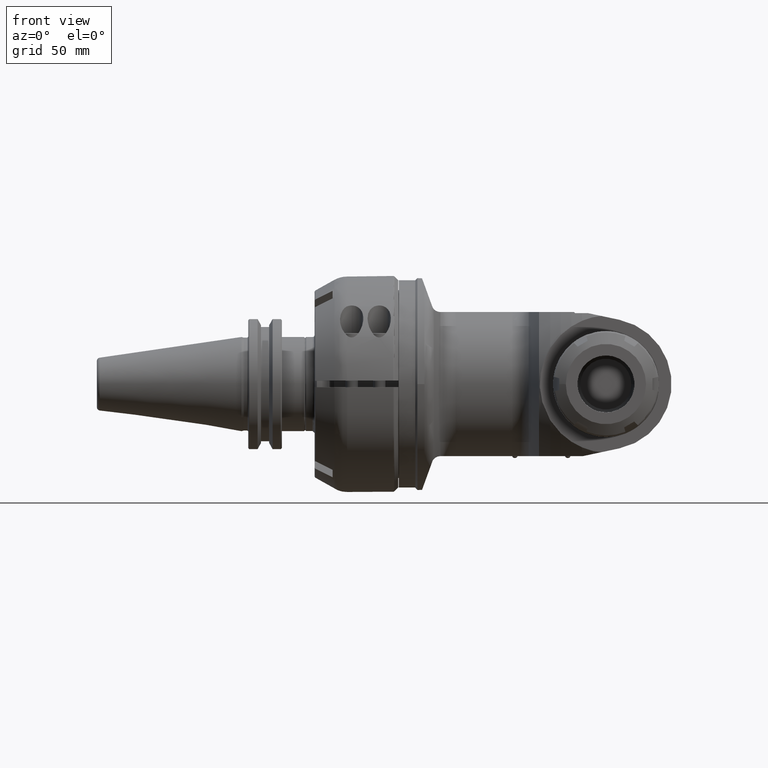
[diagram: clean part render]
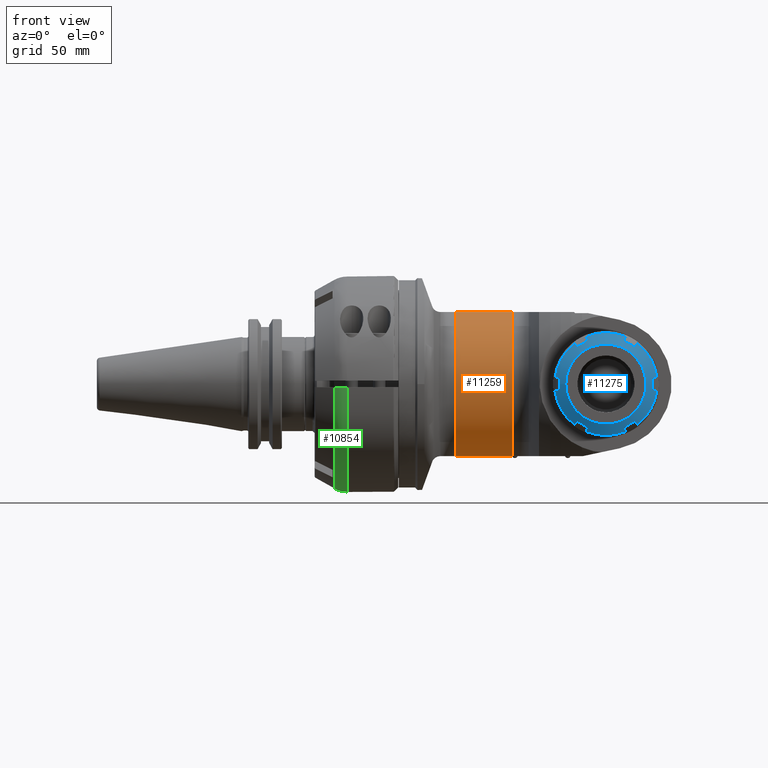
[diagram: same view with three faces highlighted in distinct colors, each labeled with its STEP entity id]
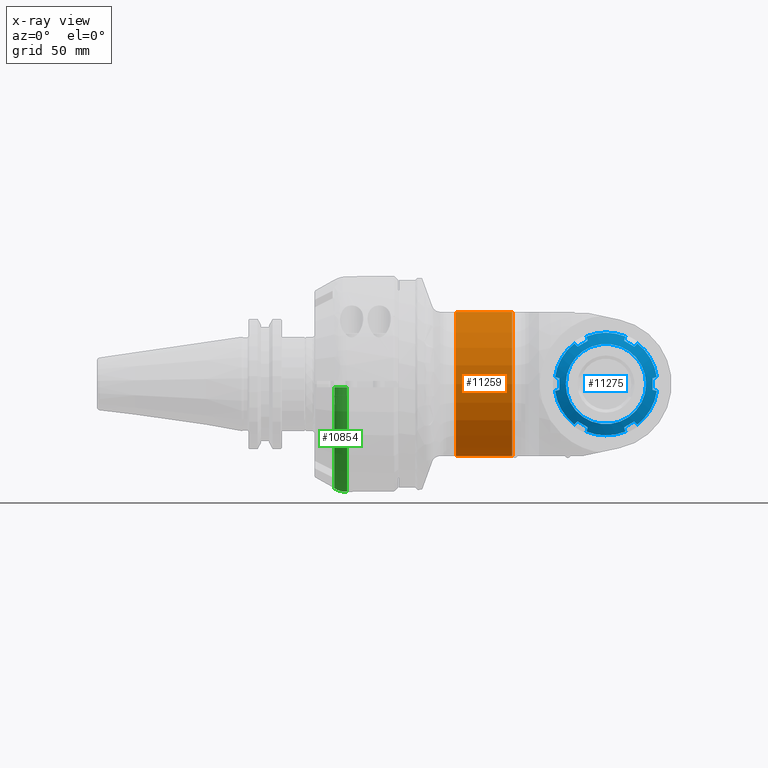
[diagram: x-ray of the same camera — body ghosted, the three highlighted faces saturated]
A machine part, front view with three faces highlighted in distinct colors.
The next image is the same camera in x-ray (body ghosted, the three faces saturated) — at least one of them is partly hidden behind the body in this view.
Their STEP definitions:

[orange] entity #11259 — the highlighted cylindrical surface (partial cylindrical patch) has radius 36 mm, axis along (-1, 0, 0).
#966=LINE('',#20756,#1640);
#974=LINE('',#20975,#1648);
#1640=VECTOR('',#14504,26.67897826015);
#1648=VECTOR('',#14532,26.67897826015);
#2056=CYLINDRICAL_SURFACE('',#12391,36.);
#2694=FACE_OUTER_BOUND('',#3419,.T.);
#3419=EDGE_LOOP('',(#9404,#9405,#9406,#9407));
#4008=CIRCLE('',#12168,36.);
#4092=CIRCLE('',#12390,36.);
#4822=VERTEX_POINT('',#20742);
#4823=VERTEX_POINT('',#20755);
#4850=VERTEX_POINT('',#20913);
#4859=VERTEX_POINT('',#20964);
#6215=EDGE_CURVE('',#4823,#4822,#966,.T.);
#6245=EDGE_CURVE('',#4850,#4822,#4008,.T.);
#6254=EDGE_CURVE('',#4850,#4859,#974,.T.);
#6572=EDGE_CURVE('',#4859,#4823,#4092,.T.);
#9404=ORIENTED_EDGE('',*,*,#6215,.T.);
#9405=ORIENTED_EDGE('',*,*,#6245,.F.);
#9406=ORIENTED_EDGE('',*,*,#6254,.T.);
#9407=ORIENTED_EDGE('',*,*,#6572,.T.);
#11259=ADVANCED_FACE('',(#2694),#2056,.T.);
#12168=AXIS2_PLACEMENT_3D('',#20926,#14527,#14528);
#12390=AXIS2_PLACEMENT_3D('',#27307,#15038,#15039);
#12391=AXIS2_PLACEMENT_3D('',#27308,#15040,#15041);
#14504=DIRECTION('',(-1.,0.,0.));
#14527=DIRECTION('center_axis',(-1.,0.,0.));
#14528=DIRECTION('ref_axis',(0.,-0.328671099061113,-0.944444444444437));
#14532=DIRECTION('',(1.,0.,0.));
#15038=DIRECTION('center_axis',(-1.,0.,0.));
#15039=DIRECTION('ref_axis',(0.,-0.328671099061113,-0.944444444444437));
#15040=DIRECTION('center_axis',(-1.,0.,0.));
#15041=DIRECTION('ref_axis',(0.,-1.,0.));
#20742=CARTESIAN_POINT('',(207.1879662404,-11.8321595662,34.));
#20755=CARTESIAN_POINT('',(233.8669445005,-11.8321595662,34.));
#20756=CARTESIAN_POINT('',(233.8669445005,-11.8321595662,34.));
#20913=CARTESIAN_POINT('',(207.1879662404,-11.8321595662,-34.));
#20926=CARTESIAN_POINT('Origin',(207.1879662404,0.,0.));
#20964=CARTESIAN_POINT('',(233.8669445005,-11.8321595662,-34.));
#20975=CARTESIAN_POINT('',(207.1879662404,-11.8321595662,-34.));
#27307=CARTESIAN_POINT('Origin',(233.8669445005,0.,0.));
#27308=CARTESIAN_POINT('Origin',(217.7095440971,0.,0.));

[blue] entity #11275 — the highlighted conical surface has half-angle 60 deg.
#269=B_SPLINE_CURVE_WITH_KNOTS('',3,(#27728,#27729,#27730,#27731,#27732,
#27733,#27734,#27735,#27736,#27737),.UNSPECIFIED.,.F.,.F.,(4,1,1,1,1,1,
1,4),(0.,0.1428571428571,0.2857142857143,0.4285714285714,0.5714285714286,
0.7142857142857,0.8571428571429,1.),.UNSPECIFIED.);
#431=(
BOUNDED_CURVE()
B_SPLINE_CURVE(2,(#27654,#27655,#27656),.UNSPECIFIED.,.F.,.F.)
B_SPLINE_CURVE_WITH_KNOTS((3,3),(2.8946947662272,3.22887960859534),
 .UNSPECIFIED.)
CURVE()
GEOMETRIC_REPRESENTATION_ITEM()
RATIONAL_B_SPLINE_CURVE((1.06939507184054,1.06415443168316,1.05677885165928))
REPRESENTATION_ITEM('')
);
#432=(
BOUNDED_CURVE()
B_SPLINE_CURVE(2,(#27661,#27662,#27663),.UNSPECIFIED.,.F.,.F.)
B_SPLINE_CURVE_WITH_KNOTS((3,3),(-3.62159789193324,-2.84214658002373),
 .UNSPECIFIED.)
CURVE()
GEOMETRIC_REPRESENTATION_ITEM()
RATIONAL_B_SPLINE_CURVE((1.35813310696789,1.36870239561124,1.35813310696939))
REPRESENTATION_ITEM('')
);
#433=(
BOUNDED_CURVE()
B_SPLINE_CURVE(2,(#27667,#27668,#27669),.UNSPECIFIED.,.F.,.F.)
B_SPLINE_CURVE_WITH_KNOTS((3,3),(2.84214658001933,3.2318722359511),
 .UNSPECIFIED.)
CURVE()
GEOMETRIC_REPRESENTATION_ITEM()
RATIONAL_B_SPLINE_CURVE((1.35813310696928,1.36341775128996,1.36341775128996))
REPRESENTATION_ITEM('')
);
#434=(
BOUNDED_CURVE()
B_SPLINE_CURVE(2,(#27671,#27672,#27673),.UNSPECIFIED.,.F.,.F.)
B_SPLINE_CURVE_WITH_KNOTS((3,3),(-3.22889795900728,-2.89471249479775),
 .UNSPECIFIED.)
CURVE()
GEOMETRIC_REPRESENTATION_ITEM()
RATIONAL_B_SPLINE_CURVE((1.05677906220088,1.0641546822046,1.06939536229632))
REPRESENTATION_ITEM('')
);
#435=(
BOUNDED_CURVE()
B_SPLINE_CURVE(2,(#27677,#27678,#27679),.UNSPECIFIED.,.F.,.F.)
B_SPLINE_CURVE_WITH_KNOTS((3,3),(2.8947124945422,3.22889795904263),
 .UNSPECIFIED.)
CURVE()
GEOMETRIC_REPRESENTATION_ITEM()
RATIONAL_B_SPLINE_CURVE((1.06939536230237,1.06415468220785,1.05677906219766))
REPRESENTATION_ITEM('')
);
#436=(
BOUNDED_CURVE()
B_SPLINE_CURVE(2,(#27681,#27682,#27683),.UNSPECIFIED.,.F.,.F.)
B_SPLINE_CURVE_WITH_KNOTS((3,3),(2.84214657994664,3.621597891877),
 .UNSPECIFIED.)
CURVE()
GEOMETRIC_REPRESENTATION_ITEM()
RATIONAL_B_SPLINE_CURVE((1.35813310696715,1.36870239561138,1.35813310696927))
REPRESENTATION_ITEM('')
);
#437=(
BOUNDED_CURVE()
B_SPLINE_CURVE(2,(#27685,#27686,#27687),.UNSPECIFIED.,.F.,.F.)
B_SPLINE_CURVE_WITH_KNOTS((3,3),(-3.22889795889929,-2.89471249479173),
 .UNSPECIFIED.)
CURVE()
GEOMETRIC_REPRESENTATION_ITEM()
RATIONAL_B_SPLINE_CURVE((1.05677906220683,1.06415468220776,1.06939536229794))
REPRESENTATION_ITEM('')
);
#438=(
BOUNDED_CURVE()
B_SPLINE_CURVE(2,(#27691,#27692,#27693),.UNSPECIFIED.,.F.,.F.)
B_SPLINE_CURVE_WITH_KNOTS((3,3),(-1.25404888701214,-0.919863422761687),
 .UNSPECIFIED.)
CURVE()
GEOMETRIC_REPRESENTATION_ITEM()
RATIONAL_B_SPLINE_CURVE((1.06939536229662,1.06415468220429,1.05677906219942))
REPRESENTATION_ITEM('')
);
#439=(
BOUNDED_CURVE()
B_SPLINE_CURVE(2,(#27695,#27696,#27697),.UNSPECIFIED.,.F.,.F.)
B_SPLINE_CURVE_WITH_KNOTS((3,3),(2.84214657994718,3.62159789187772),
 .UNSPECIFIED.)
CURVE()
GEOMETRIC_REPRESENTATION_ITEM()
RATIONAL_B_SPLINE_CURVE((1.35813310696737,1.36870239561159,1.35813310696946))
REPRESENTATION_ITEM('')
);
#440=(
BOUNDED_CURVE()
B_SPLINE_CURVE(2,(#27699,#27700,#27701),.UNSPECIFIED.,.F.,.F.)
B_SPLINE_CURVE_WITH_KNOTS((3,3),(-3.22889795890329,-2.89471249479701),
 .UNSPECIFIED.)
CURVE()
GEOMETRIC_REPRESENTATION_ITEM()
RATIONAL_B_SPLINE_CURVE((1.05677906220293,1.0641546822034,1.06939536229327))
REPRESENTATION_ITEM('')
);
#441=(
BOUNDED_CURVE()
B_SPLINE_CURVE(2,(#27704,#27705,#27706),.UNSPECIFIED.,.F.,.F.)
B_SPLINE_CURVE_WITH_KNOTS((3,3),(-3.22887960849045,-2.89469476622474),
 .UNSPECIFIED.)
CURVE()
GEOMETRIC_REPRESENTATION_ITEM()
RATIONAL_B_SPLINE_CURVE((1.05677885166473,1.06415443168578,1.06939507184162))
REPRESENTATION_ITEM('')
);
#442=(
BOUNDED_CURVE()
B_SPLINE_CURVE(2,(#27710,#27711,#27712),.UNSPECIFIED.,.F.,.F.)
B_SPLINE_CURVE_WITH_KNOTS((3,3),(2.89471249479439,3.22889795889704),
 .UNSPECIFIED.)
CURVE()
GEOMETRIC_REPRESENTATION_ITEM()
RATIONAL_B_SPLINE_CURVE((1.06939536229377,1.06415468220394,1.05677906220355))
REPRESENTATION_ITEM('')
);
#443=(
BOUNDED_CURVE()
B_SPLINE_CURVE(2,(#27714,#27715,#27716),.UNSPECIFIED.,.F.,.F.)
B_SPLINE_CURVE_WITH_KNOTS((3,3),(-3.62159789195664,-2.84214658009392),
 .UNSPECIFIED.)
CURVE()
GEOMETRIC_REPRESENTATION_ITEM()
RATIONAL_B_SPLINE_CURVE((1.35813310696705,1.36870239561041,1.3581331069711))
REPRESENTATION_ITEM('')
);
#444=(
BOUNDED_CURVE()
B_SPLINE_CURVE(2,(#27718,#27719,#27720),.UNSPECIFIED.,.F.,.F.)
B_SPLINE_CURVE_WITH_KNOTS((3,3),(-3.22889795923017,-2.89471249479151),
 .UNSPECIFIED.)
CURVE()
GEOMETRIC_REPRESENTATION_ITEM()
RATIONAL_B_SPLINE_CURVE((1.05677906219022,1.06415468220034,1.06939536229556))
REPRESENTATION_ITEM('')
);
#445=(
BOUNDED_CURVE()
B_SPLINE_CURVE(2,(#27724,#27725,#27726),.UNSPECIFIED.,.F.,.F.)
B_SPLINE_CURVE_WITH_KNOTS((3,3),(-1.25404888701385,-0.919863422762857),
 .UNSPECIFIED.)
CURVE()
GEOMETRIC_REPRESENTATION_ITEM()
RATIONAL_B_SPLINE_CURVE((1.06939536229778,1.06415468220536,1.05677906220037))
REPRESENTATION_ITEM('')
);
#446=(
BOUNDED_CURVE()
B_SPLINE_CURVE(2,(#27739,#27740,#27741),.UNSPECIFIED.,.F.,.F.)
B_SPLINE_CURVE_WITH_KNOTS((3,3),(-3.2288979591161,-2.89471249453895),
 .UNSPECIFIED.)
CURVE()
GEOMETRIC_REPRESENTATION_ITEM()
RATIONAL_B_SPLINE_CURVE((1.05677906219605,1.06415468220861,1.06939536230446))
REPRESENTATION_ITEM('')
);
#447=(
BOUNDED_CURVE()
B_SPLINE_CURVE(2,(#27745,#27746,#27747),.UNSPECIFIED.,.F.,.F.)
B_SPLINE_CURVE_WITH_KNOTS((3,3),(-1.25404888700702,-0.919863422760813),
 .UNSPECIFIED.)
CURVE()
GEOMETRIC_REPRESENTATION_ITEM()
RATIONAL_B_SPLINE_CURVE((1.06939536229599,1.06415468220373,1.056779062199))
REPRESENTATION_ITEM('')
);
#448=(
BOUNDED_CURVE()
B_SPLINE_CURVE(2,(#27748,#27749,#27750),.UNSPECIFIED.,.F.,.F.)
B_SPLINE_CURVE_WITH_KNOTS((3,3),(3.2318722359511,3.6215978918785),
 .UNSPECIFIED.)
CURVE()
GEOMETRIC_REPRESENTATION_ITEM()
RATIONAL_B_SPLINE_CURVE((1.36341775128996,1.36341775128996,1.3581331069694))
REPRESENTATION_ITEM('')
);
#560=CONICAL_SURFACE('',#12429,21.59391108757,1.0471975511966);
#1065=LINE('',#27752,#1739);
#1739=VECTOR('',#15155,21.59391108757);
#2710=FACE_OUTER_BOUND('',#3436,.T.);
#3436=EDGE_LOOP('',(#9508,#9509,#9510,#9511,#9512,#9513,#9514,#9515,#9516,
#9517,#9518,#9519,#9520,#9521,#9522,#9523,#9524,#9525,#9526,#9527,#9528,
#9529,#9530,#9531,#9532,#9533,#9534,#9535));
#4110=CIRCLE('',#12430,24.25);
#4111=CIRCLE('',#12431,24.25);
#4112=CIRCLE('',#12432,24.25);
#4113=CIRCLE('',#12433,24.25);
#4114=CIRCLE('',#12434,24.25);
#4115=CIRCLE('',#12435,24.25);
#4116=CIRCLE('',#12436,18.93782217351);
#5109=VERTEX_POINT('',#27651);
#5110=VERTEX_POINT('',#27653);
#5111=VERTEX_POINT('',#27659);
#5112=VERTEX_POINT('',#27665);
#5113=VERTEX_POINT('',#27666);
#5114=VERTEX_POINT('',#27670);
#5115=VERTEX_POINT('',#27674);
#5116=VERTEX_POINT('',#27676);
#5117=VERTEX_POINT('',#27680);
#5118=VERTEX_POINT('',#27684);
#5119=VERTEX_POINT('',#27688);
#5120=VERTEX_POINT('',#27690);
#5121=VERTEX_POINT('',#27694);
#5122=VERTEX_POINT('',#27698);
#5123=VERTEX_POINT('',#27703);
#5124=VERTEX_POINT('',#27707);
#5125=VERTEX_POINT('',#27709);
#5126=VERTEX_POINT('',#27713);
#5127=VERTEX_POINT('',#27717);
#5128=VERTEX_POINT('',#27721);
#5129=VERTEX_POINT('',#27723);
#5130=VERTEX_POINT('',#27727);
#5131=VERTEX_POINT('',#27738);
#5132=VERTEX_POINT('',#27742);
#5133=VERTEX_POINT('',#27744);
#5134=VERTEX_POINT('',#27751);
#6633=EDGE_CURVE('',#5110,#5109,#431,.T.);
#6636=EDGE_CURVE('',#5111,#5109,#432,.T.);
#6637=EDGE_CURVE('',#5112,#5113,#433,.T.);
#6638=EDGE_CURVE('',#5112,#5114,#434,.T.);
#6639=EDGE_CURVE('',#5115,#5114,#4110,.T.);
#6640=EDGE_CURVE('',#5115,#5116,#435,.T.);
#6641=EDGE_CURVE('',#5117,#5116,#436,.T.);
#6642=EDGE_CURVE('',#5117,#5118,#437,.T.);
#6643=EDGE_CURVE('',#5119,#5118,#4111,.T.);
#6644=EDGE_CURVE('',#5119,#5120,#438,.T.);
#6645=EDGE_CURVE('',#5121,#5120,#439,.T.);
#6646=EDGE_CURVE('',#5121,#5122,#440,.T.);
#6647=EDGE_CURVE('',#5110,#5122,#4112,.T.);
#6648=EDGE_CURVE('',#5111,#5123,#441,.T.);
#6649=EDGE_CURVE('',#5124,#5123,#4113,.T.);
#6650=EDGE_CURVE('',#5124,#5125,#442,.T.);
#6651=EDGE_CURVE('',#5125,#5126,#443,.T.);
#6652=EDGE_CURVE('',#5126,#5127,#444,.T.);
#6653=EDGE_CURVE('',#5128,#5127,#4114,.T.);
#6654=EDGE_CURVE('',#5128,#5129,#445,.T.);
#6655=EDGE_CURVE('',#5130,#5129,#269,.T.);
#6656=EDGE_CURVE('',#5130,#5131,#446,.T.);
#6657=EDGE_CURVE('',#5132,#5131,#4115,.T.);
#6658=EDGE_CURVE('',#5132,#5133,#447,.T.);
#6659=EDGE_CURVE('',#5113,#5133,#448,.T.);
#6660=EDGE_CURVE('',#5113,#5134,#1065,.T.);
#6661=EDGE_CURVE('',#5134,#5134,#4116,.T.);
#9508=ORIENTED_EDGE('',*,*,#6637,.F.);
#9509=ORIENTED_EDGE('',*,*,#6638,.T.);
#9510=ORIENTED_EDGE('',*,*,#6639,.F.);
#9511=ORIENTED_EDGE('',*,*,#6640,.T.);
#9512=ORIENTED_EDGE('',*,*,#6641,.F.);
#9513=ORIENTED_EDGE('',*,*,#6642,.T.);
#9514=ORIENTED_EDGE('',*,*,#6643,.F.);
#9515=ORIENTED_EDGE('',*,*,#6644,.T.);
#9516=ORIENTED_EDGE('',*,*,#6645,.F.);
#9517=ORIENTED_EDGE('',*,*,#6646,.T.);
#9518=ORIENTED_EDGE('',*,*,#6647,.F.);
#9519=ORIENTED_EDGE('',*,*,#6633,.T.);
#9520=ORIENTED_EDGE('',*,*,#6636,.F.);
#9521=ORIENTED_EDGE('',*,*,#6648,.T.);
#9522=ORIENTED_EDGE('',*,*,#6649,.F.);
#9523=ORIENTED_EDGE('',*,*,#6650,.T.);
#9524=ORIENTED_EDGE('',*,*,#6651,.T.);
#9525=ORIENTED_EDGE('',*,*,#6652,.T.);
#9526=ORIENTED_EDGE('',*,*,#6653,.F.);
#9527=ORIENTED_EDGE('',*,*,#6654,.T.);
#9528=ORIENTED_EDGE('',*,*,#6655,.F.);
#9529=ORIENTED_EDGE('',*,*,#6656,.T.);
#9530=ORIENTED_EDGE('',*,*,#6657,.F.);
#9531=ORIENTED_EDGE('',*,*,#6658,.T.);
#9532=ORIENTED_EDGE('',*,*,#6659,.F.);
#9533=ORIENTED_EDGE('',*,*,#6660,.T.);
#9534=ORIENTED_EDGE('',*,*,#6661,.F.);
#9535=ORIENTED_EDGE('',*,*,#6660,.F.);
#11275=ADVANCED_FACE('',(#2710),#560,.T.);
#12429=AXIS2_PLACEMENT_3D('',#27664,#15141,#15142);
#12430=AXIS2_PLACEMENT_3D('',#27675,#15143,#15144);
#12431=AXIS2_PLACEMENT_3D('',#27689,#15145,#15146);
#12432=AXIS2_PLACEMENT_3D('',#27702,#15147,#15148);
#12433=AXIS2_PLACEMENT_3D('',#27708,#15149,#15150);
#12434=AXIS2_PLACEMENT_3D('',#27722,#15151,#15152);
#12435=AXIS2_PLACEMENT_3D('',#27743,#15153,#15154);
#12436=AXIS2_PLACEMENT_3D('',#27753,#15156,#15157);
#15141=DIRECTION('center_axis',(0.,1.,0.));
#15142=DIRECTION('ref_axis',(1.,0.,0.));
#15143=DIRECTION('center_axis',(0.,1.,0.));
#15144=DIRECTION('ref_axis',(-0.612959861267379,0.,-0.790114047764673));
#15145=DIRECTION('center_axis',(0.,1.,0.));
#15146=DIRECTION('ref_axis',(0.377778906625412,0.,-0.925895835236831));
#15147=DIRECTION('center_axis',(0.,1.,0.));
#15148=DIRECTION('ref_axis',(0.990738767886012,0.,-0.135781787466902));
#15149=DIRECTION('center_axis',(0.,1.,0.));
#15150=DIRECTION('ref_axis',(0.612959861260615,0.,0.79011404776992));
#15151=DIRECTION('center_axis',(0.,1.,0.));
#15152=DIRECTION('ref_axis',(-0.377778906625412,0.,0.925895835236831));
#15153=DIRECTION('center_axis',(0.,1.,0.));
#15154=DIRECTION('ref_axis',(-0.990738767886012,0.,0.135781787466902));
#15155=DIRECTION('',(0.866025403784439,-0.5,-1.06057523872491E-16));
#15156=DIRECTION('center_axis',(0.,-1.,0.));
#15157=DIRECTION('ref_axis',(-1.,0.,0.));
#27651=CARTESIAN_POINT('',(300.063097,-92.13320335629,-2.75));
#27653=CARTESIAN_POINT('',(302.0885121212,-90.93301270189,-3.292708346073));
#27654=CARTESIAN_POINT('Ctrl Pts',(302.088512121209,-90.9330127019026,-3.29270834606575));
#27655=CARTESIAN_POINT('Ctrl Pts',(301.030454437,-91.5604502300833,-3.00920264403637));
#27656=CARTESIAN_POINT('Ctrl Pts',(300.063096999996,-92.133203356283,-2.74999999999885));
#27659=CARTESIAN_POINT('',(300.063097000377,-92.1332033556323,2.75000000034614));
#27661=CARTESIAN_POINT('Ctrl Pts',(300.063097,-92.1332033562533,2.75000000037951));
#27662=CARTESIAN_POINT('Ctrl Pts',(300.063097,-92.3301349466543,1.92624582950884E-10));
#27663=CARTESIAN_POINT('Ctrl Pts',(300.063097,-92.1332033562814,-2.74999999998824));
#27664=CARTESIAN_POINT('Origin',(278.063097,-92.46650635047,-1.474542142266E-14));
#27665=CARTESIAN_POINT('',(256.0630969999,-92.13320335595,-2.750000000008));
#27666=CARTESIAN_POINT('',(256.063097,-92.2320508075636,-1.17256579010239E-14));
#27667=CARTESIAN_POINT('Ctrl Pts',(256.063097,-92.1332033562791,-2.75000000002044));
#27668=CARTESIAN_POINT('Ctrl Pts',(256.063097,-92.2320508075636,-1.3696704625782));
#27669=CARTESIAN_POINT('Ctrl Pts',(256.063097,-92.2320508075636,-1.14001173375119E-14));
#27670=CARTESIAN_POINT('',(254.0376818788,-90.9330127019,-3.292708346088));
#27671=CARTESIAN_POINT('Ctrl Pts',(256.063096999791,-92.1332033561567,-2.75000000005603));
#27672=CARTESIAN_POINT('Ctrl Pts',(255.095739562884,-91.5604502300144,-3.00920264406749));
#27673=CARTESIAN_POINT('Ctrl Pts',(254.037681878792,-90.9330127019033,-3.29270834606543));
#27674=CARTESIAN_POINT('',(263.198820363622,-90.9330127012663,-19.1602656591634));
#27675=CARTESIAN_POINT('Origin',(278.063097,-90.93301270189,-1.457516942698E-14));
#27676=CARTESIAN_POINT('',(264.6815271396,-92.13320335629,-17.67755888326));
#27677=CARTESIAN_POINT('Ctrl Pts',(263.19882036328,-90.9330127009513,-19.1602656595796));
#27678=CARTESIAN_POINT('Ctrl Pts',(263.973372346099,-91.5604502296503,-18.3857136767607));
#27679=CARTESIAN_POINT('Ctrl Pts',(264.681527139603,-92.133203356284,-17.6775588832573));
#27680=CARTESIAN_POINT('',(269.444666860554,-92.1332033553804,-20.4275588839519));
#27681=CARTESIAN_POINT('Ctrl Pts',(269.444666860869,-92.1332033562389,-20.4275588835306));
#27682=CARTESIAN_POINT('Ctrl Pts',(267.063097000234,-92.3301349466564,-19.0525588833992));
#27683=CARTESIAN_POINT('Ctrl Pts',(264.681527139607,-92.1332033562787,-17.6775588832721));
#27684=CARTESIAN_POINT('',(268.9019585143,-90.93301270189,-22.45297400449));
#27685=CARTESIAN_POINT('Ctrl Pts',(269.444666860177,-92.1332033557857,-20.4275588840909));
#27686=CARTESIAN_POINT('Ctrl Pts',(269.185464216238,-91.5604502298034,-21.3949163207273));
#27687=CARTESIAN_POINT('Ctrl Pts',(268.901958514328,-90.9330127018849,-22.4529740044943));
#27688=CARTESIAN_POINT('',(287.2242354857,-90.93301270189,-22.45297400449));
#27689=CARTESIAN_POINT('Origin',(278.063097,-90.93301270189,-1.457516942698E-14));
#27690=CARTESIAN_POINT('',(286.6815271396,-92.13320335629,-20.42755888326));
#27691=CARTESIAN_POINT('Ctrl Pts',(287.224235485672,-90.9330127018849,-22.4529740044943));
#27692=CARTESIAN_POINT('Ctrl Pts',(286.940729783639,-91.560450230074,-21.394916320271));
#27693=CARTESIAN_POINT('Ctrl Pts',(286.681527139599,-92.1332033562809,-20.4275588832545));
#27694=CARTESIAN_POINT('',(291.444666861076,-92.1332033553845,-17.6775588834723));
#27695=CARTESIAN_POINT('Ctrl Pts',(291.444666860869,-92.1332033562432,-17.6775588829894));
#27696=CARTESIAN_POINT('Ctrl Pts',(289.063097000234,-92.3301349466605,-19.0525588831208));
#27697=CARTESIAN_POINT('Ctrl Pts',(286.681527139607,-92.1332033562826,-20.427558883248));
#27698=CARTESIAN_POINT('',(292.9273736356,-90.9330127019,-19.1602656584));
#27699=CARTESIAN_POINT('Ctrl Pts',(291.444666861008,-92.1332033557898,-17.6775588838683));
#27700=CARTESIAN_POINT('Ctrl Pts',(292.152821653708,-91.5604502298061,-18.3857136765675));
#27701=CARTESIAN_POINT('Ctrl Pts',(292.927373635565,-90.9330127018869,-19.1602656584247));
#27702=CARTESIAN_POINT('Origin',(278.063097,-90.93301270189,-1.457516942698E-14));
#27703=CARTESIAN_POINT('',(302.0885121212,-90.93301270189,3.2927083461));
#27704=CARTESIAN_POINT('Ctrl Pts',(300.0630970006,-92.1332033559252,2.75000000016081));
#27705=CARTESIAN_POINT('Ctrl Pts',(301.030454437332,-91.5604502298864,3.00920264412535));
#27706=CARTESIAN_POINT('Ctrl Pts',(302.088512121214,-90.9330127018996,3.29270834606713));
#27707=CARTESIAN_POINT('',(292.9273736356,-90.9330127019,19.16026565841));
#27708=CARTESIAN_POINT('Origin',(278.063097,-90.93301270189,-1.457516942698E-14));
#27709=CARTESIAN_POINT('',(291.444666861099,-92.1332033553581,17.6775588834827));
#27710=CARTESIAN_POINT('Ctrl Pts',(292.927373635568,-90.9330127018838,19.1602656584284));
#27711=CARTESIAN_POINT('Ctrl Pts',(292.15282165372,-91.5604502297959,18.3857136765801));
#27712=CARTESIAN_POINT('Ctrl Pts',(291.444666861029,-92.1332033557735,17.6775588838886));
#27713=CARTESIAN_POINT('',(286.681527139587,-92.133203356839,20.4275588823794));
#27714=CARTESIAN_POINT('Ctrl Pts',(291.444666860886,-92.133203356238,17.6775588829878));
#27715=CARTESIAN_POINT('Ctrl Pts',(289.063097000456,-92.3301349466394,19.0525588830009));
#27716=CARTESIAN_POINT('Ctrl Pts',(286.68152714004,-92.1332033563141,20.4275588830058));
#27717=CARTESIAN_POINT('',(287.2242354857,-90.93301270189,22.45297400449));
#27718=CARTESIAN_POINT('Ctrl Pts',(286.681527139304,-92.133203356932,20.4275588821547));
#27719=CARTESIAN_POINT('Ctrl Pts',(286.940729783479,-91.5604502304298,21.3949163196709));
#27720=CARTESIAN_POINT('Ctrl Pts',(287.224235485672,-90.9330127018849,22.4529740044943));
#27721=CARTESIAN_POINT('',(268.9019585143,-90.93301270189,22.45297400449));
#27722=CARTESIAN_POINT('Origin',(278.063097,-90.93301270189,-1.457516942698E-14));
#27723=CARTESIAN_POINT('',(269.4446668604,-92.13320335629,20.42755888326));
#27724=CARTESIAN_POINT('Ctrl Pts',(268.901958514328,-90.9330127018849,22.4529740044943));
#27725=CARTESIAN_POINT('Ctrl Pts',(269.185464216361,-91.560450230074,21.3949163202709));
#27726=CARTESIAN_POINT('Ctrl Pts',(269.444666860401,-92.1332033562808,20.4275588832545));
#27727=CARTESIAN_POINT('',(264.6815271397,-92.13320335708,17.67755888314));
#27728=CARTESIAN_POINT('Ctrl Pts',(264.6815271397,-92.13320335708,17.67755888314));
#27729=CARTESIAN_POINT('Ctrl Pts',(264.9082996029,-92.15195513194,17.80848602581));
#27730=CARTESIAN_POINT('Ctrl Pts',(265.361865626,-92.18418521203,18.07035249158));
#27731=CARTESIAN_POINT('Ctrl Pts',(266.0423616975,-92.21652482126,18.46323708159));
#27732=CARTESIAN_POINT('Ctrl Pts',(266.7227963117,-92.23272533056,18.85608618927));
#27733=CARTESIAN_POINT('Ctrl Pts',(267.4033976883,-92.23272533059,19.24903157727));
#27734=CARTESIAN_POINT('Ctrl Pts',(268.0838323025,-92.21652482116,19.64188068493));
#27735=CARTESIAN_POINT('Ctrl Pts',(268.7643283741,-92.18418521239,20.03476527503));
#27736=CARTESIAN_POINT('Ctrl Pts',(269.2178943972,-92.15195513115,20.29663174057));
#27737=CARTESIAN_POINT('Ctrl Pts',(269.4446668604,-92.13320335629,20.42755888326));
#27738=CARTESIAN_POINT('',(263.198820363622,-90.9330127012663,19.1602656591634));
#27739=CARTESIAN_POINT('Ctrl Pts',(264.681527139926,-92.1332033565458,17.6775588829337));
#27740=CARTESIAN_POINT('Ctrl Pts',(263.973372346276,-91.5604502297936,18.3857136765838));
#27741=CARTESIAN_POINT('Ctrl Pts',(263.19882036328,-90.9330127009513,19.1602656595796));
#27742=CARTESIAN_POINT('',(254.0376818788,-90.93301270189,3.292708346073));
#27743=CARTESIAN_POINT('Origin',(278.063097,-90.93301270189,-1.457516942698E-14));
#27744=CARTESIAN_POINT('',(256.063097,-92.13320335629,2.750000000001));
#27745=CARTESIAN_POINT('Ctrl Pts',(254.037681878791,-90.9330127019025,3.29270834606578));
#27746=CARTESIAN_POINT('Ctrl Pts',(255.095739563,-91.560450230083,3.00920264403646));
#27747=CARTESIAN_POINT('Ctrl Pts',(256.063097000004,-92.1332033562828,2.7499999999989));
#27748=CARTESIAN_POINT('Ctrl Pts',(256.063097,-92.2320508075636,-1.14001173375119E-14));
#27749=CARTESIAN_POINT('Ctrl Pts',(256.063097,-92.2320508075636,1.36967046256277));
#27750=CARTESIAN_POINT('Ctrl Pts',(256.063097,-92.1332033562813,2.74999999998925));
#27751=CARTESIAN_POINT('',(259.1252748265,-94.,-1.138256824098E-14));
#27752=CARTESIAN_POINT('',(256.46918591243,-92.46650635047,-1.21009300132135E-14));
#27753=CARTESIAN_POINT('Origin',(278.063097,-94.,-1.491567341844E-14));

[green] entity #10854 — the highlighted toroidal blend (fillet) surface has major radius 39 mm and minor (blend) radius 12 mm.
#41=B_SPLINE_CURVE_WITH_KNOTS('',3,(#16368,#16369,#16370,#16371,#16372,
#16373,#16374,#16375),.UNSPECIFIED.,.F.,.F.,(4,2,2,4),(-0.594227973602593,
-0.444215566130122,-0.222107783584741,-1.03935915429787E-9),
 .UNSPECIFIED.);
#50=B_SPLINE_CURVE_WITH_KNOTS('',3,(#16628,#16629,#16630,#16631,#16632,
#16633,#16634,#16635,#16636,#16637,#16638,#16639,#16640,#16641,#16642,#16643,
#16644,#16645,#16646,#16647,#16648,#16649,#16650,#16651,#16652,#16653,#16654,
#16655,#16656,#16657,#16658,#16659,#16660,#16661,#16662,#16663,#16664,#16665,
#16666,#16667,#16668,#16669,#16670,#16671,#16672,#16673,#16674,#16675,#16676),
 .UNSPECIFIED.,.F.,.F.,(4,3,3,3,3,3,3,3,3,3,3,3,3,3,3,3,4),(0.,0.0625,0.125,
0.1875,0.25,0.3125,0.375,0.4375,0.5,0.5625,0.625,0.6875,0.75,0.8125,0.875,
0.9375,0.999999999802341),.UNSPECIFIED.);
#2123=TOROIDAL_SURFACE('',#11611,39.,12.);
#2289=FACE_OUTER_BOUND('',#2967,.T.);
#2967=EDGE_LOOP('',(#7321,#7322,#7323,#7324));
#3736=CIRCLE('',#11604,49.39230484541);
#3742=CIRCLE('',#11612,51.);
#4348=VERTEX_POINT('',#16356);
#4349=VERTEX_POINT('',#16367);
#4394=VERTEX_POINT('',#16533);
#4404=VERTEX_POINT('',#16626);
#5476=EDGE_CURVE('',#4348,#4349,#41,.T.);
#5536=EDGE_CURVE('',#4348,#4394,#3736,.T.);
#5548=EDGE_CURVE('',#4404,#4394,#50,.T.);
#5549=EDGE_CURVE('',#4404,#4349,#3742,.T.);
#7321=ORIENTED_EDGE('',*,*,#5548,.F.);
#7322=ORIENTED_EDGE('',*,*,#5549,.T.);
#7323=ORIENTED_EDGE('',*,*,#5476,.F.);
#7324=ORIENTED_EDGE('',*,*,#5536,.T.);
#10854=ADVANCED_FACE('',(#2289),#2123,.T.);
#11604=AXIS2_PLACEMENT_3D('',#16549,#13083,#13084);
#11611=AXIS2_PLACEMENT_3D('',#16677,#13101,#13102);
#11612=AXIS2_PLACEMENT_3D('',#16678,#13103,#13104);
#13083=DIRECTION('center_axis',(1.,0.,0.));
#13084=DIRECTION('ref_axis',(0.,-0.999538752412674,-0.0303691031364992));
#13101=DIRECTION('center_axis',(1.,0.,0.));
#13102=DIRECTION('ref_axis',(0.,-1.,0.));
#13103=DIRECTION('center_axis',(-1.,0.,0.));
#13104=DIRECTION('ref_axis',(0.,0.823529411764684,-0.567273574176089));
#16356=CARTESIAN_POINT('',(149.902830802236,-49.3695157362067,-1.50000010664761));
#16367=CARTESIAN_POINT('',(155.902842951806,-50.9779364044794,-1.49999998023586));
#16368=CARTESIAN_POINT('Ctrl Pts',(149.902830800522,-49.3695157391732,-1.5));
#16369=CARTESIAN_POINT('Ctrl Pts',(150.37098939568,-49.6399326898017,-1.5));
#16370=CARTESIAN_POINT('Ctrl Pts',(150.849503622797,-49.8730330344582,-1.5));
#16371=CARTESIAN_POINT('Ctrl Pts',(151.995444350481,-50.3478104405525,-1.5));
#16372=CARTESIAN_POINT('Ctrl Pts',(152.770399141554,-50.5898074567293,-1.5));
#16373=CARTESIAN_POINT('Ctrl Pts',(154.353918755318,-50.9048707091654,-1.5));
#16374=CARTESIAN_POINT('Ctrl Pts',(155.162483685754,-50.9779364038993,-1.5));
#16375=CARTESIAN_POINT('Ctrl Pts',(155.9028429622,-50.9779364038993,-1.5));
#16533=CARTESIAN_POINT('',(149.902842959557,42.0000000008622,-25.9923022781252));
#16549=CARTESIAN_POINT('Origin',(149.9028429622,0.,0.));
#16626=CARTESIAN_POINT('',(155.9028429622,42.,-28.93095228298));
#16628=CARTESIAN_POINT('Ctrl Pts',(155.9028429622,41.9999999999995,-28.9309522829796));
#16629=CARTESIAN_POINT('Ctrl Pts',(155.7791543843,41.9999999999995,-28.9309522829796));
#16630=CARTESIAN_POINT('Ctrl Pts',(155.655431300865,41.9999993981607,-28.9275840314638));
#16631=CARTESIAN_POINT('Ctrl Pts',(155.531629654442,41.9999999999972,-28.9208271959623));
#16632=CARTESIAN_POINT('Ctrl Pts',(155.407828008018,42.0000006018338,-28.9140703604608));
#16633=CARTESIAN_POINT('Ctrl Pts',(155.283947820208,42.0000009148558,-28.9039239125949));
#16634=CARTESIAN_POINT('Ctrl Pts',(155.160121194517,41.9999999999987,-28.8903760501608));
#16635=CARTESIAN_POINT('Ctrl Pts',(155.036294568825,41.9999990851417,-28.8768281877266));
#16636=CARTESIAN_POINT('Ctrl Pts',(154.912521295715,41.9999996173908,-28.8598807507832));
#16637=CARTESIAN_POINT('Ctrl Pts',(154.7886225704,41.9999999999957,-28.8394685404704));
#16638=CARTESIAN_POINT('Ctrl Pts',(154.664723845086,42.0000003826005,-28.8190563301575));
#16639=CARTESIAN_POINT('Ctrl Pts',(154.540699860161,41.9999994161847,-28.7951785250245));
#16640=CARTESIAN_POINT('Ctrl Pts',(154.4165189895,41.9999999999969,-28.7677479879112));
#16641=CARTESIAN_POINT('Ctrl Pts',(154.29233811884,42.0000005838091,-28.7403174507979));
#16642=CARTESIAN_POINT('Ctrl Pts',(154.168000538191,42.0000011629984,-28.7093331134864));
#16643=CARTESIAN_POINT('Ctrl Pts',(154.043656006634,41.9999999999952,-28.6747504871001));
#16644=CARTESIAN_POINT('Ctrl Pts',(153.919311475077,41.999998836992,-28.6401678607137));
#16645=CARTESIAN_POINT('Ctrl Pts',(153.794959386579,41.9999991745183,-28.601989160125));
#16646=CARTESIAN_POINT('Ctrl Pts',(153.670387718385,41.9999999999914,-28.5600416937875));
#16647=CARTESIAN_POINT('Ctrl Pts',(153.545816050191,42.0000008254646,-28.51809422745));
#16648=CARTESIAN_POINT('Ctrl Pts',(153.421025390951,41.9999998010869,-28.4723764094857));
#16649=CARTESIAN_POINT('Ctrl Pts',(153.296080707802,41.9999999999944,-28.4227635854062));
#16650=CARTESIAN_POINT('Ctrl Pts',(153.171136024652,42.0000001989019,-28.3731507613267));
#16651=CARTESIAN_POINT('Ctrl Pts',(153.046037370002,42.0000011331826,-28.3196425939145));
#16652=CARTESIAN_POINT('Ctrl Pts',(152.920905703871,41.9999999999868,-28.2621435910278));
#16653=CARTESIAN_POINT('Ctrl Pts',(152.79577403774,41.9999988667911,-28.2046445881412));
#16654=CARTESIAN_POINT('Ctrl Pts',(152.670608457332,41.999998729596,-28.1431568160462));
#16655=CARTESIAN_POINT('Ctrl Pts',(152.545213636787,41.99999999999,-28.0773972710633));
#16656=CARTESIAN_POINT('Ctrl Pts',(152.419818816242,42.0000012703841,-28.0116377260805));
#16657=CARTESIAN_POINT('Ctrl Pts',(152.294195922602,42.0000006717917,-27.9416042194098));
#16658=CARTESIAN_POINT('Ctrl Pts',(152.168514481324,41.999999999982,-27.867167347853));
#16659=CARTESIAN_POINT('Ctrl Pts',(152.042833040046,41.9999993281723,-27.7927304762963));
#16660=CARTESIAN_POINT('Ctrl Pts',(151.917092295783,42.0000003314258,-27.7138913916173));
#16661=CARTESIAN_POINT('Ctrl Pts',(151.791287699826,41.9999999999778,-27.6304101981137));
#16662=CARTESIAN_POINT('Ctrl Pts',(151.66548310387,41.9999996685298,-27.5469290046101));
#16663=CARTESIAN_POINT('Ctrl Pts',(151.539614326321,41.999998934738,-27.45880632615));
#16664=CARTESIAN_POINT('Ctrl Pts',(151.41361035309,41.9999999999858,-27.365695303959));
#16665=CARTESIAN_POINT('Ctrl Pts',(151.287606379859,42.0000010652336,-27.272584281768));
#16666=CARTESIAN_POINT('Ctrl Pts',(151.161468460808,42.0000012443363,-27.1744831596406));
#16667=CARTESIAN_POINT('Ctrl Pts',(151.035404336355,41.9999999999946,-27.0712248588144));
#16668=CARTESIAN_POINT('Ctrl Pts',(150.909340211901,41.999998755653,-26.9679665579881));
#16669=CARTESIAN_POINT('Ctrl Pts',(150.783348235726,41.9999991866414,-26.8595530746256));
#16670=CARTESIAN_POINT('Ctrl Pts',(150.657360442965,41.999999999978,-26.7455546021722));
#16671=CARTESIAN_POINT('Ctrl Pts',(150.531372650204,42.0000008133146,-26.6315561297188));
#16672=CARTESIAN_POINT('Ctrl Pts',(150.405390309251,41.9999999188997,-26.5119713475429));
#16673=CARTESIAN_POINT('Ctrl Pts',(150.279568063098,41.9999999999754,-26.3865092533448));
#16674=CARTESIAN_POINT('Ctrl Pts',(150.153745817343,42.0000000810512,-26.2610471595434));
#16675=CARTESIAN_POINT('Ctrl Pts',(150.028084338053,42.0000000001829,-26.1297070322098));
#16676=CARTESIAN_POINT('Ctrl Pts',(149.902842958968,42.0000000001497,-25.992302278662));
#16677=CARTESIAN_POINT('Origin',(155.9028429622,0.,0.));
#16678=CARTESIAN_POINT('Origin',(155.9028429622,0.,0.));